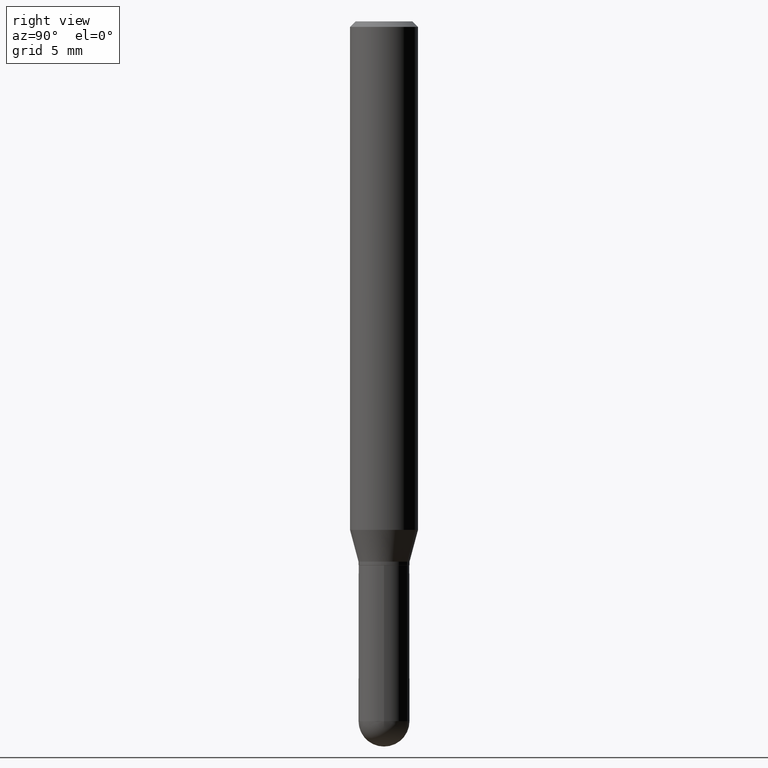
[diagram: clean part render]
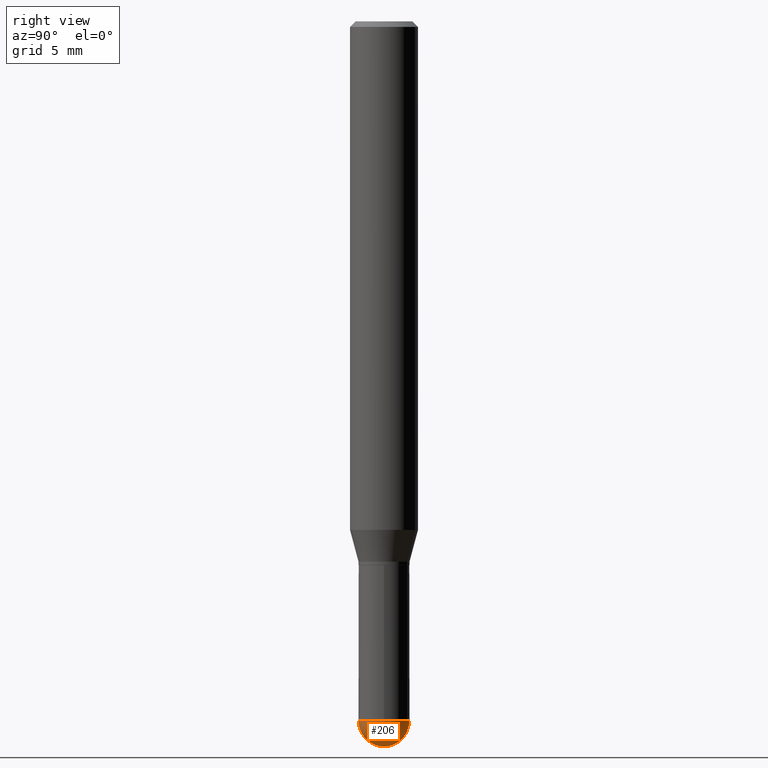
[diagram: same view with one face highlighted and labeled with its STEP entity id]
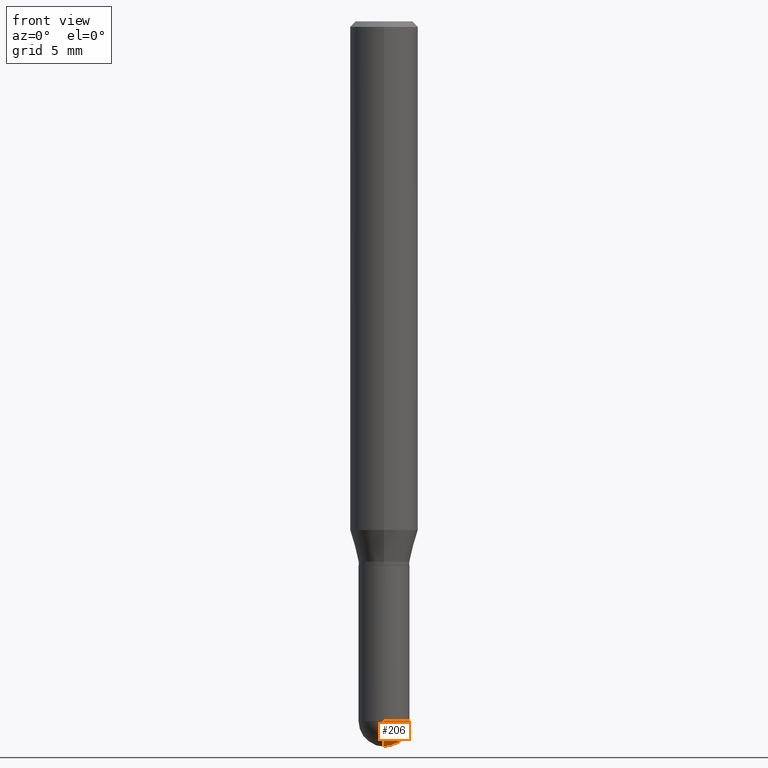
[diagram: same view with one face highlighted and labeled with its STEP entity id]
A machine part, right view. The second image highlights one B-rep face of the part: STEP entity #206.
A second angle (front view) of the same face is appended — the face is thin or edge-on in the first view.
In plain terms, the highlighted spherical surface has radius 1.7856 mm.
Its self-contained STEP definition (entity closure, byte-faithful):
#14 = DIRECTION ( 'NONE',  ( 1.000000000000000000, -6.982962677686261189E-15, 0.000000000000000000 ) ) ;
#32 = AXIS2_PLACEMENT_3D ( 'NONE', #91, #331, #14 ) ;
#43 = FACE_OUTER_BOUND ( 'NONE', #509, .T. ) ;
#48 = CARTESIAN_POINT ( 'NONE',  ( 4.909022762413921804E-16, 0.07029999999999332616, -1.929700000000000193 ) ) ;
#91 = CARTESIAN_POINT ( 'NONE',  ( 4.719021155295457704E-29, -6.737511539565617508E-15, -1.929699999999999971 ) ) ;
#110 = VERTEX_POINT ( 'NONE', #397 ) ;
#113 = DIRECTION ( 'NONE',  ( -1.000000000000000000, 7.105427357601001070E-15, -4.926315508542082329E-29 ) ) ;
#127 = CARTESIAN_POINT ( 'NONE',  ( 4.930690017322777259E-29, -6.926034971227925253E-15, -2.000000000000000000 ) ) ;
#140 = DIRECTION ( 'NONE',  ( 1.000000000000000000, -6.982962677686265922E-15, 4.883557194083112340E-29 ) ) ;
#148 = EDGE_CURVE ( 'NONE', #243, #110, #320, .T. ) ;
#163 = DIRECTION ( 'NONE',  ( 6.982962677686265922E-15, 1.000000000000000000, -3.885985766236503808E-15 ) ) ;
#165 = AXIS2_PLACEMENT_3D ( 'NONE', #366, #402, #163 ) ;
#170 = DIRECTION ( 'NONE',  ( 1.000000000000000000, -6.982962677686261189E-15, 0.000000000000000000 ) ) ;
#171 = DIRECTION ( 'NONE',  ( 6.982962677686266711E-15, 1.000000000000000000, 0.000000000000000000 ) ) ;
#196 = ORIENTED_EDGE ( 'NONE', *, *, #290, .F. ) ;
#200 = AXIS2_PLACEMENT_3D ( 'NONE', #499, #140, #171 ) ;
#205 = SPHERICAL_SURFACE ( 'NONE', #165, 0.07030000000000002913 ) ;
#206 = ADVANCED_FACE ( 'NONE', ( #43 ), #205, .T. ) ;
#213 = DIRECTION ( 'NONE',  ( -2.445468806185136597E-29, 3.491481338843145583E-15, 1.000000000000000000 ) ) ;
#228 = CARTESIAN_POINT ( 'NONE',  ( 4.719021155295457704E-29, -6.737511539565617508E-15, -1.929699999999999971 ) ) ;
#243 = VERTEX_POINT ( 'NONE', #472 ) ;
#277 = ORIENTED_EDGE ( 'NONE', *, *, #488, .T. ) ;
#289 = CIRCLE ( 'NONE', #200, 0.07030000000000002913 ) ;
#290 = EDGE_CURVE ( 'NONE', #422, #243, #360, .T. ) ;
#293 = ORIENTED_EDGE ( 'NONE', *, *, #148, .F. ) ;
#315 = VERTEX_POINT ( 'NONE', #48 ) ;
#320 = CIRCLE ( 'NONE', #32, 0.07030000000000004301 ) ;
#331 = DIRECTION ( 'NONE',  ( -2.445468806185136597E-29, 3.491481338843145583E-15, 1.000000000000000000 ) ) ;
#350 = CARTESIAN_POINT ( 'NONE',  ( 4.755767650741496407E-29, -6.684888466606255625E-15, -1.929699999999999971 ) ) ;
#360 = CIRCLE ( 'NONE', #449, 0.07030000000000002913 ) ;
#366 = CARTESIAN_POINT ( 'NONE',  ( 4.755767650741496407E-29, -6.684888466606255625E-15, -1.929699999999999971 ) ) ;
#367 = CIRCLE ( 'NONE', #406, 0.07030000000000004301 ) ;
#378 = DIRECTION ( 'NONE',  ( -7.105427357601001859E-15, -1.000000000000000000, 0.000000000000000000 ) ) ;
#391 = ORIENTED_EDGE ( 'NONE', *, *, #403, .F. ) ;
#397 = CARTESIAN_POINT ( 'NONE',  ( 0.07030000000000004301, -6.478269050156512001E-15, -1.929699999999999971 ) ) ;
#402 = DIRECTION ( 'NONE',  ( -1.000000000000000000, 6.982962677686265922E-15, -4.883557194083112340E-29 ) ) ;
#403 = EDGE_CURVE ( 'NONE', #110, #315, #367, .T. ) ;
#406 = AXIS2_PLACEMENT_3D ( 'NONE', #228, #213, #170 ) ;
#422 = VERTEX_POINT ( 'NONE', #127 ) ;
#449 = AXIS2_PLACEMENT_3D ( 'NONE', #350, #113, #378 ) ;
#472 = CARTESIAN_POINT ( 'NONE',  ( -4.995115432393033060E-16, -0.07030000000000674598, -1.929699999999999527 ) ) ;
#488 = EDGE_CURVE ( 'NONE', #422, #315, #289, .T. ) ;
#499 = CARTESIAN_POINT ( 'NONE',  ( 4.755767650741496407E-29, -6.684888466606255625E-15, -1.929699999999999971 ) ) ;
#509 = EDGE_LOOP ( 'NONE', ( #196, #277, #391, #293 ) ) ;